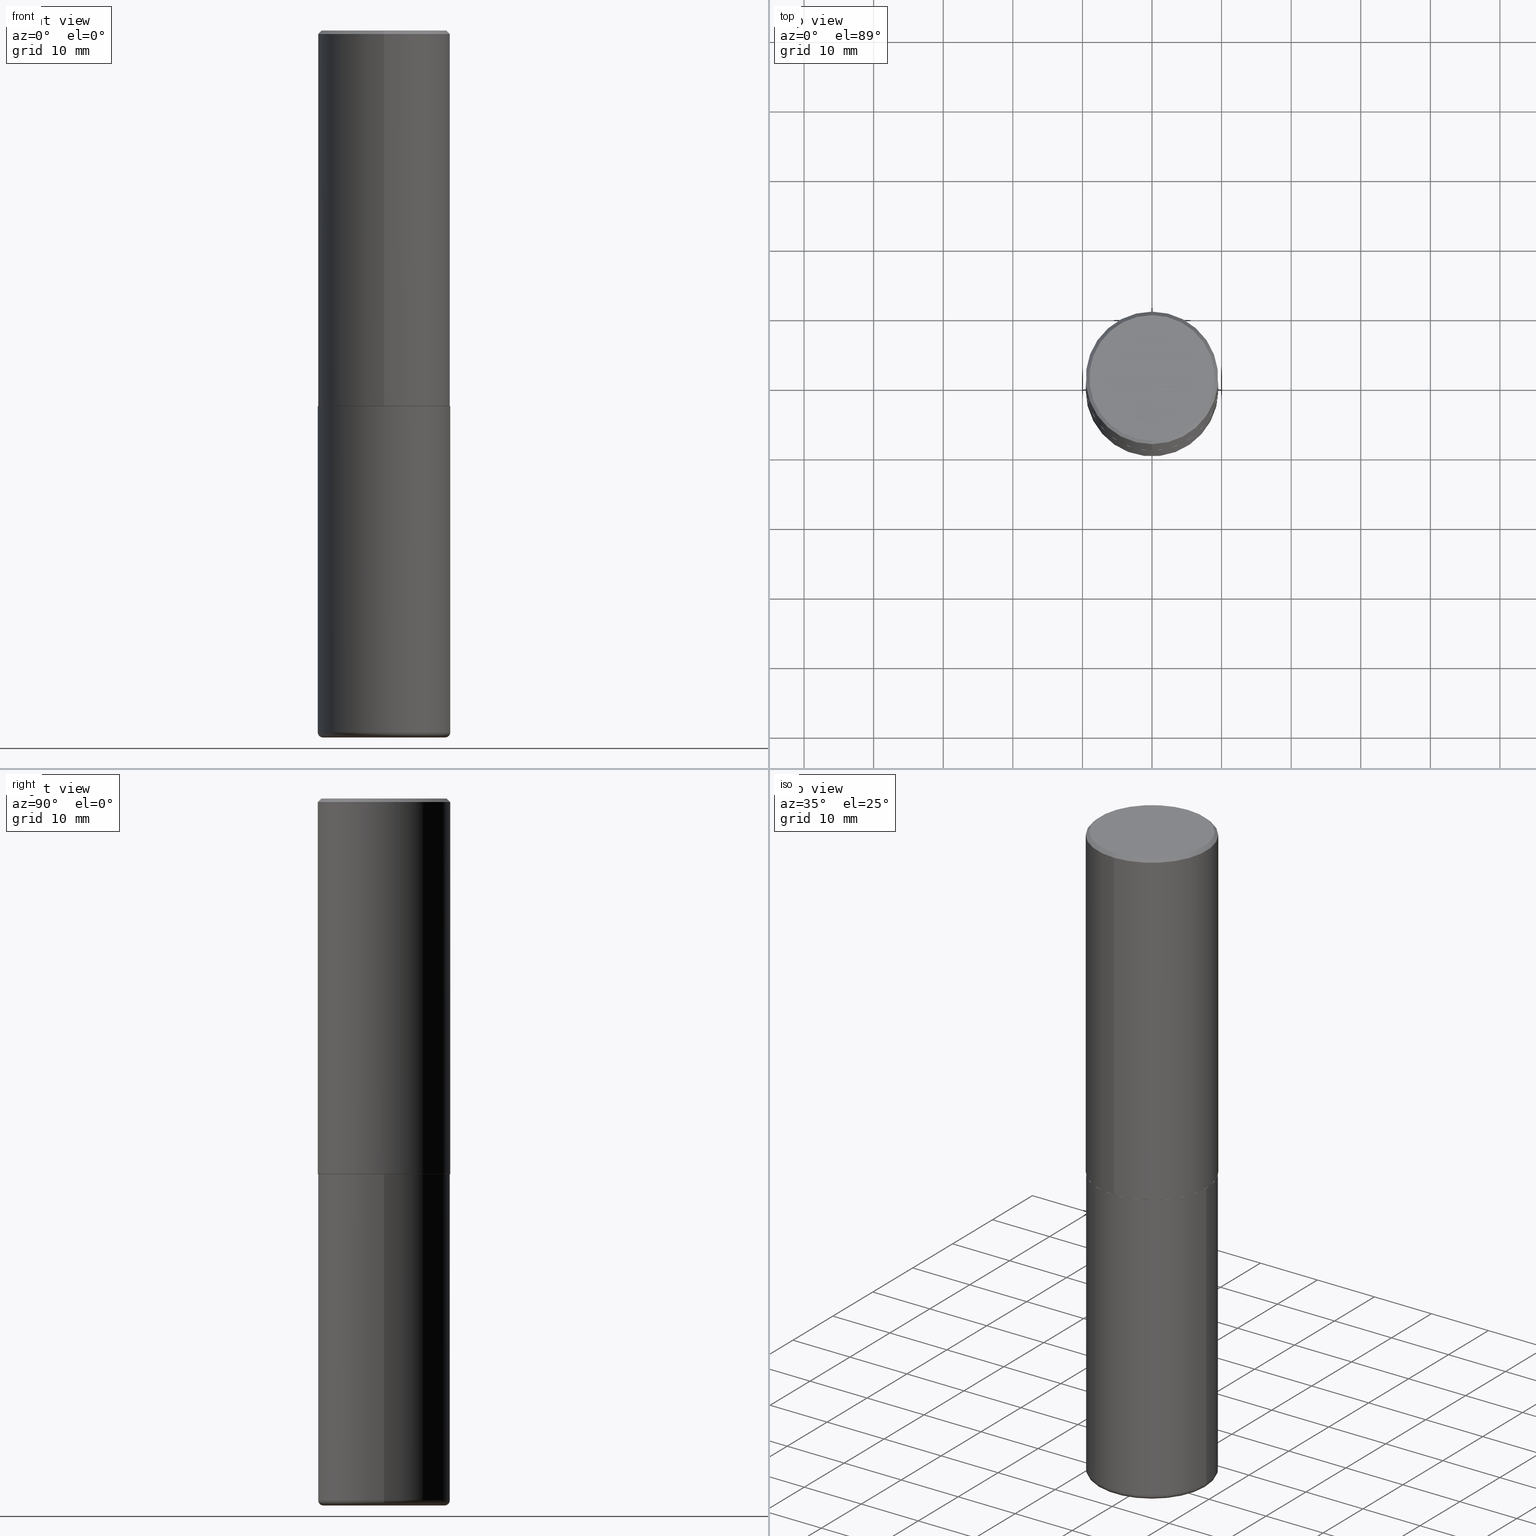
[diagram: canonical four-view strip — front | top / right | iso, engineering-drawing reading convention]
A machine part, canonical four-view strip (front | top / right | iso — engineering-drawing reading convention). The complete STEP part file that produces these views, byte-faithful:
ISO-10303-21;
HEADER;
FILE_DESCRIPTION (( 'STEP AP203' ),
    '1' );
FILE_NAME ('77419.STEP',
    '2024-05-02T19:38:42',
    ( '' ),
    ( '' ),
    'SwSTEP 2.0',
    'SolidWorks 2023',
    '' );
FILE_SCHEMA (( 'CONFIG_CONTROL_DESIGN' ));
ENDSEC;

DATA;
#1 = AXIS2_PLACEMENT_3D ( 'NONE', #12, #267, #354 ) ;
#2 = LOCAL_TIME ( 15, 38, 42.00000000000000000, #308 ) ;
#3 = CARTESIAN_POINT ( 'NONE',  ( 5.194774663215162724E-29, -7.422042209638035708E-15, -2.125000000000000000 ) ) ;
#4 = FACE_OUTER_BOUND ( 'NONE', #178, .T. ) ;
#5 = DIRECTION ( 'NONE',  ( 2.444599841513016780E-29, -3.492725745712018196E-15, -1.000000000000000000 ) ) ;
#6 = CYLINDRICAL_SURFACE ( 'NONE', #355, 0.3750000000000001665 ) ;
#7 = CARTESIAN_POINT ( 'NONE',  ( -0.3749999999999999445, -1.119664565610691011E-14, -3.970000000000000195 ) ) ;
#8 = AXIS2_PLACEMENT_3D ( 'NONE', #360, #63, #89 ) ;
#9 = DIRECTION ( 'NONE',  ( -2.445468806185136597E-29, 3.491481338843145583E-15, 1.000000000000000000 ) ) ;
#10 = DIRECTION ( 'NONE',  ( -6.982962677686266711E-15, -1.000000000000000000, 3.492725745712018196E-15 ) ) ;
#11 = VERTEX_POINT ( 'NONE', #117 ) ;
#12 = CARTESIAN_POINT ( 'NONE',  ( 9.781875224740546387E-29, -1.396592535537258233E-14, -4.000000000000000000 ) ) ;
#13 = AXIS2_PLACEMENT_3D ( 'NONE', #394, #194, #261 ) ;
#14 = APPROVAL_STATUS ( 'not_yet_approved' ) ;
#15 = PRODUCT_RELATED_PRODUCT_CATEGORY ( 'detail', '', ( #51 ) ) ;
#16 = ORIENTED_EDGE ( 'NONE', *, *, #388, .T. ) ;
#17 = PERSON_AND_ORGANIZATION ( #141, #54 ) ;
#18 = CIRCLE ( 'NONE', #131, 0.3750000000000000555 ) ;
#19 = ORIENTED_EDGE ( 'NONE', *, *, #345, .T. ) ;
#20 = ORIENTED_EDGE ( 'NONE', *, *, #111, .T. ) ;
#21 = ADVANCED_FACE ( 'NONE', ( #379 ), #82, .F. ) ;
#22 = ORIENTED_EDGE ( 'NONE', *, *, #30, .T. ) ;
#23 = DIRECTION ( 'NONE',  ( 1.000000000000000000, -6.982962677686279332E-15, 0.000000000000000000 ) ) ;
#24 = ORIENTED_EDGE ( 'NONE', *, *, #225, .F. ) ;
#25 = CC_DESIGN_DATE_AND_TIME_ASSIGNMENT ( #40, #75, ( #249 ) ) ;
#26 = CYLINDRICAL_SURFACE ( 'NONE', #418, 0.3750000000000000555 ) ;
#27 = DIRECTION ( 'NONE',  ( 2.444599841513017620E-29, -3.492725745712017802E-15, -1.000000000000000000 ) ) ;
#28 = AXIS2_PLACEMENT_3D ( 'NONE', #134, #90, #232 ) ;
#29 = DIRECTION ( 'NONE',  ( 1.000000000000000000, -6.982962677686263555E-15, 4.883557194083111219E-29 ) ) ;
#30 = EDGE_CURVE ( 'NONE', #415, #169, #124, .T. ) ;
#31 = MANIFOLD_SOLID_BREP ( 'Body-Move/Copy2[2]', #166 ) ;
#32 = DIRECTION ( 'NONE',  ( -6.982962677686266711E-15, -1.000000000000000000, 3.642463991552348591E-15 ) ) ;
#33 = DIRECTION ( 'NONE',  ( -2.444599841513017620E-29, 3.492725745712017802E-15, 1.000000000000000000 ) ) ;
#34 = AXIS2_PLACEMENT_3D ( 'NONE', #380, #316, #23 ) ;
#35 = CIRCLE ( 'NONE', #1, 0.3450000000000000289 ) ;
#36 = CARTESIAN_POINT ( 'NONE',  ( 3.954426510820204334E-45, -5.649892898348338006E-31, -1.617617101853660202E-16 ) ) ;
#37 = DIRECTION ( 'NONE',  ( -2.445468806185136597E-29, 3.491481338843145583E-15, 1.000000000000000000 ) ) ;
#38 = CC_DESIGN_PERSON_AND_ORGANIZATION_ASSIGNMENT ( #149, #175, ( #83 ) ) ;
#39 = ORIENTED_EDGE ( 'NONE', *, *, #183, .T. ) ;
#40 = DATE_AND_TIME ( #109, #2 ) ;
#41 = AXIS2_PLACEMENT_3D ( 'NONE', #113, #272, #344 ) ;
#42 = EDGE_CURVE ( 'NONE', #301, #399, #284, .T. ) ;
#43 = APPROVAL_DATE_TIME ( #334, #370 ) ;
#44 = ORIENTED_EDGE ( 'NONE', *, *, #266, .T. ) ;
#45 = APPROVAL_ROLE ( '' ) ;
#46 = CONICAL_SURFACE ( 'NONE', #352, 0.3750000000000000555, 0.7853981633974466137 ) ;
#47 = ORIENTED_EDGE ( 'NONE', *, *, #266, .F. ) ;
#48 = ADVANCED_FACE ( 'NONE', ( #84 ), #61, .T. ) ;
#49 = EDGE_LOOP ( 'NONE', ( #208, #44, #22, #361 ) ) ;
#50 = DIRECTION ( 'NONE',  ( 2.438088387897960049E-29, -3.491481338843145188E-15, -1.000000000000000000 ) ) ;
#51 = PRODUCT ( '77419', '77419', '', ( #207 ) ) ;
#52 = ORIENTED_EDGE ( 'NONE', *, *, #229, .T. ) ;
#53 = AXIS2_PLACEMENT_3D ( 'NONE', #278, #86, #76 ) ;
#54 = ORGANIZATION ( 'UNSPECIFIED', 'UNSPECIFIED', '' ) ;
#55 = DIRECTION ( 'NONE',  ( -2.444599841513017620E-29, 3.492725745712017802E-15, 1.000000000000000000 ) ) ;
#56 = DIRECTION ( 'NONE',  ( -2.445468806185136597E-29, 3.491481338843145583E-15, 1.000000000000000000 ) ) ;
#57 = ADVANCED_FACE ( 'NONE', ( #192 ), #26, .T. ) ;
#58 = DIRECTION ( 'NONE',  ( -2.445468806185136597E-29, 3.491481338843145583E-15, 1.000000000000000000 ) ) ;
#59 = CARTESIAN_POINT ( 'NONE',  ( 0.3750000000000000555, -1.003800884917403364E-14, -2.125000000000000000 ) ) ;
#60 = CARTESIAN_POINT ( 'NONE',  ( 0.000000000000000000, 0.000000000000000000, 0.000000000000000000 ) ) ;
#61 = CYLINDRICAL_SURFACE ( 'NONE', #138, 0.3750000000000000555 ) ;
#62 = DIRECTION ( 'NONE',  ( -2.444599841513017620E-29, 3.492725745712017802E-15, 1.000000000000000000 ) ) ;
#63 = DIRECTION ( 'NONE',  ( -2.444599841513017620E-29, 3.492725745712017802E-15, 1.000000000000000000 ) ) ;
#64 = COORDINATED_UNIVERSAL_TIME_OFFSET ( 5, 0, .BEHIND. ) ;
#65 = DIRECTION ( 'NONE',  ( -2.445468806185136597E-29, 3.491481338843145583E-15, 1.000000000000000000 ) ) ;
#66 = APPROVAL_DATE_TIME ( #95, #147 ) ;
#67 = ADVANCED_FACE ( 'NONE', ( #386 ), #180, .T. ) ;
#68 = COORDINATED_UNIVERSAL_TIME_OFFSET ( 5, 0, .BEHIND. ) ;
#69 = CALENDAR_DATE ( 2024, 2, 5 ) ;
#70 =( GEOMETRIC_REPRESENTATION_CONTEXT ( 3 ) GLOBAL_UNCERTAINTY_ASSIGNED_CONTEXT ( ( #296 ) ) GLOBAL_UNIT_ASSIGNED_CONTEXT ( ( #101, #210, #215 ) ) REPRESENTATION_CONTEXT ( 'NONE', 'WORKASPACE' ) );
#71 = VERTEX_POINT ( 'NONE', #228 ) ;
#72 = PERSON_AND_ORGANIZATION ( #141, #54 ) ;
#73 = DIRECTION ( 'NONE',  ( 6.982962677686265922E-15, 1.000000000000000000, -3.494488891895536035E-15 ) ) ;
#74 = ORIENTED_EDGE ( 'NONE', *, *, #303, .F. ) ;
#75 = DATE_TIME_ROLE ( 'classification_date' ) ;
#76 = DIRECTION ( 'NONE',  ( 1.000000000000000000, -6.982962677686266711E-15, 0.000000000000000000 ) ) ;
#77 = ORIENTED_EDGE ( 'NONE', *, *, #303, .T. ) ;
#78 = DIRECTION ( 'NONE',  ( -2.445468806185136597E-29, 3.491481338843145583E-15, 1.000000000000000000 ) ) ;
#79 = CARTESIAN_POINT ( 'NONE',  ( 4.889199683026055945E-31, -6.985451491424065481E-17, -0.02000000000000008715 ) ) ;
#80 = AXIS2_PLACEMENT_3D ( 'NONE', #273, #374, #158 ) ;
#81 = VERTEX_POINT ( 'NONE', #259 ) ;
#82 = PLANE ( 'NONE',  #222 ) ;
#83 = PRODUCT_DEFINITION ( 'UNKNOWN', '', #201, #331 ) ;
#84 = FACE_OUTER_BOUND ( 'NONE', #339, .T. ) ;
#85 = VECTOR ( 'NONE', #335, 39.37007874015748143 ) ;
#86 = DIRECTION ( 'NONE',  ( -2.445468806185136597E-29, 3.491481338843145583E-15, 1.000000000000000000 ) ) ;
#87 = DIRECTION ( 'NONE',  ( -2.445468806185136597E-29, 3.491481338843145583E-15, 1.000000000000000000 ) ) ;
#88 = DIRECTION ( 'NONE',  ( -2.444599841513017620E-29, 3.492725745712017802E-15, 1.000000000000000000 ) ) ;
#89 = DIRECTION ( 'NONE',  ( -6.982962677686266711E-15, -1.000000000000000000, 3.652203200085913145E-15 ) ) ;
#90 = DIRECTION ( 'NONE',  ( -2.444599841513017620E-29, 3.492725745712017802E-15, 1.000000000000000000 ) ) ;
#91 = AXIS2_PLACEMENT_3D ( 'NONE', #213, #78, #110 ) ;
#92 = DIRECTION ( 'NONE',  ( 4.937700262164538576E-15, 0.7071067811865437980, -0.7071067811865511255 ) ) ;
#93 = DIRECTION ( 'NONE',  ( -1.000000000000000000, 7.105427357601001859E-15, 0.000000000000000000 ) ) ;
#94 = CARTESIAN_POINT ( 'NONE',  ( 3.954426510820204334E-45, -5.649892898348338006E-31, -1.617617101853660202E-16 ) ) ;
#95 = DATE_AND_TIME ( #304, #348 ) ;
#96 = CIRCLE ( 'NONE', #13, 0.3739999999999999991 ) ;
#97 = DIRECTION ( 'NONE',  ( -2.444599841513017620E-29, 3.492725745712018196E-15, 1.000000000000000000 ) ) ;
#98 = ORIENTED_EDGE ( 'NONE', *, *, #298, .F. ) ;
#99 = APPLICATION_PROTOCOL_DEFINITION ( 'international standard', 'config_control_design', 1994, #369 ) ;
#100 = EDGE_CURVE ( 'NONE', #399, #280, #236, .T. ) ;
#101 =( CONVERSION_BASED_UNIT ( 'INCH', #401 ) LENGTH_UNIT ( ) NAMED_UNIT ( #118 ) );
#102 = ADVANCED_FACE ( 'NONE', ( #198 ), #417, .T. ) ;
#103 = COORDINATED_UNIVERSAL_TIME_OFFSET ( 5, 0, .BEHIND. ) ;
#104 = DIRECTION ( 'NONE',  ( -6.982962677686266711E-15, -1.000000000000000000, 3.652203200085913145E-15 ) ) ;
#105 = ORIENTED_EDGE ( 'NONE', *, *, #289, .T. ) ;
#106 = AXIS2_PLACEMENT_3D ( 'NONE', #327, #135, #32 ) ;
#107 = CARTESIAN_POINT ( 'NONE',  ( 5.194774663215161603E-29, -7.422042209638035708E-15, -2.124999999999999556 ) ) ;
#108 = ORIENTED_EDGE ( 'NONE', *, *, #246, .F. ) ;
#109 = CALENDAR_DATE ( 2024, 2, 5 ) ;
#110 = DIRECTION ( 'NONE',  ( 1.000000000000000000, -6.982962677686266711E-15, 0.000000000000000000 ) ) ;
#111 = EDGE_CURVE ( 'NONE', #415, #275, #403, .T. ) ;
#112 = EDGE_LOOP ( 'NONE', ( #105, #52 ) ) ;
#113 = CARTESIAN_POINT ( 'NONE',  ( 4.889199683026055945E-31, -6.985451491424065481E-17, -0.02000000000000008715 ) ) ;
#114 = DIRECTION ( 'NONE',  ( -6.982962677686265922E-15, -1.000000000000000000, 3.492725745712018196E-15 ) ) ;
#115 = ORIENTED_EDGE ( 'NONE', *, *, #42, .F. ) ;
#116 = CONICAL_SURFACE ( 'NONE', #8, 0.3739999999999999991, 0.7853981633976873100 ) ;
#117 = CARTESIAN_POINT ( 'NONE',  ( -2.504081769186609399E-15, -0.3550000000000001488, 1.078155929542400814E-15 ) ) ;
#118 = DIMENSIONAL_EXPONENTS ( 1.000000000000000000, 0.000000000000000000, 0.000000000000000000, 0.000000000000000000, 0.000000000000000000, 0.000000000000000000, 0.000000000000000000 ) ;
#119 = ADVANCED_FACE ( 'NONE', ( #4 ), #128, .T. ) ;
#120 = DIRECTION ( 'NONE',  ( 5.024295867789263036E-15, 0.7071067811867189912, 0.7071067811863760433 ) ) ;
#121 = APPLICATION_CONTEXT ( 'configuration controlled 3d designs of mechanical parts and assemblies' ) ;
#122 = ORIENTED_EDGE ( 'NONE', *, *, #377, .F. ) ;
#123 = FACE_OUTER_BOUND ( 'NONE', #211, .T. ) ;
#124 = CIRCLE ( 'NONE', #34, 0.02999999999999995379 ) ;
#125 = VECTOR ( 'NONE', #92, 39.37007874015748854 ) ;
#126 = CARTESIAN_POINT ( 'NONE',  ( 9.781875224740546387E-29, -1.396592535537258233E-14, -4.000000000000000000 ) ) ;
#127 = CARTESIAN_POINT ( 'NONE',  ( 4.889199683026055945E-31, -6.985451491424065481E-17, -0.02000000000000008715 ) ) ;
#128 = CYLINDRICAL_SURFACE ( 'NONE', #347, 0.3750000000000001665 ) ;
#129 = CARTESIAN_POINT ( 'NONE',  ( 2.660982545421628047E-15, 0.3739999999999925606, -2.125000000000000888 ) ) ;
#130 = LINE ( 'NONE', #164, #324 ) ;
#131 = AXIS2_PLACEMENT_3D ( 'NONE', #79, #55, #190 ) ;
#132 = LOCAL_TIME ( 15, 38, 42.00000000000000000, #64 ) ;
#133 = LINE ( 'NONE', #264, #288 ) ;
#134 = CARTESIAN_POINT ( 'NONE',  ( 5.192330063373648592E-29, -7.418549483892325607E-15, -2.123999999999999666 ) ) ;
#135 = DIRECTION ( 'NONE',  ( -2.444599841513017620E-29, 3.492725745712017802E-15, 1.000000000000000000 ) ) ;
#136 = DIRECTION ( 'NONE',  ( -6.982962677686266711E-15, -1.000000000000000000, 3.492725745712018196E-15 ) ) ;
#137 = DIRECTION ( 'NONE',  ( 6.982962677686265922E-15, 1.000000000000000000, -3.492725745712018196E-15 ) ) ;
#138 = AXIS2_PLACEMENT_3D ( 'NONE', #320, #58, #165 ) ;
#139 = VECTOR ( 'NONE', #238, 39.37007874015748143 ) ;
#140 = APPROVAL_PERSON_ORGANIZATION ( #319, #384, #154 ) ;
#141 = PERSON ( 'UNSPECIFIED', 'UNSPECIFIED', 'UNSPECIFIED', ('UNSPECIFIED'), ('UNSPECIFIED'), ('UNSPECIFIED') ) ;
#142 = ORIENTED_EDGE ( 'NONE', *, *, #205, .F. ) ;
#143 = DIRECTION ( 'NONE',  ( 0.000000000000000000, 0.000000000000000000, 1.000000000000000000 ) ) ;
#144 = FACE_OUTER_BOUND ( 'NONE', #250, .T. ) ;
#145 = LINE ( 'NONE', #312, #243 ) ;
#146 = AXIS2_PLACEMENT_3D ( 'NONE', #383, #87, #160 ) ;
#147 = APPROVAL ( #14, 'UNSPECIFIED' ) ;
#148 = EDGE_LOOP ( 'NONE', ( #315, #351 ) ) ;
#149 = PERSON_AND_ORGANIZATION ( #141, #54 ) ;
#150 = APPLICATION_PROTOCOL_DEFINITION ( 'international standard', 'config_control_design', 1994, #121 ) ;
#151 = ORIENTED_EDGE ( 'NONE', *, *, #336, .T. ) ;
#152 = ADVANCED_FACE ( 'NONE', ( #123 ), #46, .T. ) ;
#153 = VERTEX_POINT ( 'NONE', #323 ) ;
#154 = APPROVAL_ROLE ( '' ) ;
#155 = AXIS2_PLACEMENT_3D ( 'NONE', #269, #405, #104 ) ;
#156 = ORIENTED_EDGE ( 'NONE', *, *, #336, .F. ) ;
#157 = ORIENTED_EDGE ( 'NONE', *, *, #270, .F. ) ;
#158 = DIRECTION ( 'NONE',  ( 1.000000000000000000, -6.982962677686266711E-15, 0.000000000000000000 ) ) ;
#159 = CC_DESIGN_PERSON_AND_ORGANIZATION_ASSIGNMENT ( #72, #400, ( #201 ) ) ;
#160 = DIRECTION ( 'NONE',  ( 1.000000000000000000, -6.982962677686267499E-15, 0.000000000000000000 ) ) ;
#161 = FACE_OUTER_BOUND ( 'NONE', #112, .T. ) ;
#162 = CARTESIAN_POINT ( 'NONE',  ( 2.478951750578625787E-15, 0.3550000000000001488, -1.320798494820450091E-15 ) ) ;
#163 = CC_DESIGN_PERSON_AND_ORGANIZATION_ASSIGNMENT ( #17, #203, ( #249 ) ) ;
#164 = CARTESIAN_POINT ( 'NONE',  ( 2.664535259100376486E-15, 0.3750000000000001665, -1.309772154642007415E-15 ) ) ;
#165 = DIRECTION ( 'NONE',  ( 1.000000000000000000, -6.982962677686265922E-15, 4.876176775795935793E-29 ) ) ;
#166 = CLOSED_SHELL ( 'NONE', ( #396, #363, #378, #152, #119, #358, #196, #260 ) ) ;
#167 = AXIS2_PLACEMENT_3D ( 'NONE', #126, #255, #322 ) ;
#168 = DIRECTION ( 'NONE',  ( -2.444599841513017620E-29, 3.492725745712017802E-15, 1.000000000000000000 ) ) ;
#169 = VERTEX_POINT ( 'NONE', #408 ) ;
#170 = CARTESIAN_POINT ( 'NONE',  ( 2.618611004132350411E-15, 0.3749999999999999445, -0.02000000000000139513 ) ) ;
#171 = MANIFOLD_SOLID_BREP ( 'Body-Move/Copy2[1]', #309 ) ;
#172 = ORIENTED_EDGE ( 'NONE', *, *, #100, .T. ) ;
#173 = PERSON_AND_ORGANIZATION ( #141, #54 ) ;
#174 = CALENDAR_DATE ( 2024, 2, 5 ) ;
#175 = PERSON_AND_ORGANIZATION_ROLE ( 'creator' ) ;
#176 = ORIENTED_EDGE ( 'NONE', *, *, #377, .T. ) ;
#177 = PERSON_AND_ORGANIZATION ( #141, #54 ) ;
#178 = EDGE_LOOP ( 'NONE', ( #108, #172, #409, #346 ) ) ;
#179 = APPROVAL_ROLE ( '' ) ;
#180 = TOROIDAL_SURFACE ( 'NONE', #353, 0.3450000000000000289, 0.02999999999999998848 ) ;
#181 = CIRCLE ( 'NONE', #80, 0.3750000000000000555 ) ;
#182 = ORIENTED_EDGE ( 'NONE', *, *, #229, .F. ) ;
#183 = EDGE_CURVE ( 'NONE', #169, #279, #181, .T. ) ;
#184 = ORIENTED_EDGE ( 'NONE', *, *, #30, .F. ) ;
#185 = CC_DESIGN_PERSON_AND_ORGANIZATION_ASSIGNMENT ( #173, #305, ( #201 ) ) ;
#186 = DIRECTION ( 'NONE',  ( -1.000000000000000000, 6.982962677686265922E-15, -4.876176775795935793E-29 ) ) ;
#187 = AXIS2_PLACEMENT_3D ( 'NONE', #107, #256, #385 ) ;
#188 = EDGE_LOOP ( 'NONE', ( #20, #19, #247, #184 ) ) ;
#189 = EDGE_CURVE ( 'NONE', #279, #169, #268, .T. ) ;
#190 = DIRECTION ( 'NONE',  ( -6.982962677686265922E-15, -1.000000000000000000, 3.494488891895536035E-15 ) ) ;
#191 = CIRCLE ( 'NONE', #106, 0.3750000000000002776 ) ;
#192 = FACE_OUTER_BOUND ( 'NONE', #217, .T. ) ;
#193 = CC_DESIGN_APPROVAL ( #370, ( #201 ) ) ;
#194 = DIRECTION ( 'NONE',  ( -2.444599841513017620E-29, 3.492725745712017802E-15, 1.000000000000000000 ) ) ;
#195 = EDGE_CURVE ( 'NONE', #251, #71, #376, .T. ) ;
#196 = ADVANCED_FACE ( 'NONE', ( #226 ), #372, .F. ) ;
#197 = CARTESIAN_POINT ( 'NONE',  ( -0.3750000000000000555, 2.664535259100376091E-15, -1.844600658845589598E-29 ) ) ;
#198 = FACE_OUTER_BOUND ( 'NONE', #220, .T. ) ;
#199 = DIRECTION ( 'NONE',  ( -6.982962677686266711E-15, -1.000000000000000000, 3.492725745712018196E-15 ) ) ;
#200 = AXIS2_PLACEMENT_3D ( 'NONE', #127, #406, #244 ) ;
#201 = PRODUCT_DEFINITION_FORMATION_WITH_SPECIFIED_SOURCE ( 'ANY', '', #51, .NOT_KNOWN. ) ;
#202 = FACE_OUTER_BOUND ( 'NONE', #341, .T. ) ;
#203 = PERSON_AND_ORGANIZATION_ROLE ( 'classification_officer' ) ;
#204 = FACE_OUTER_BOUND ( 'NONE', #49, .T. ) ;
#205 = EDGE_CURVE ( 'NONE', #71, #251, #18, .T. ) ;
#206 = SHAPE_DEFINITION_REPRESENTATION ( #414, #235 ) ;
#207 = MECHANICAL_CONTEXT ( 'NONE', #121, 'mechanical' ) ;
#208 = ORIENTED_EDGE ( 'NONE', *, *, #345, .F. ) ;
#209 = DIRECTION ( 'NONE',  ( 1.000000000000000000, 0.000000000000000000, 0.000000000000000000 ) ) ;
#210 =( NAMED_UNIT ( * ) PLANE_ANGLE_UNIT ( ) SI_UNIT ( $, .RADIAN. ) );
#211 = EDGE_LOOP ( 'NONE', ( #286, #299, #330, #404 ) ) ;
#212 = DATE_TIME_ROLE ( 'creation_date' ) ;
#213 = CARTESIAN_POINT ( 'NONE',  ( 5.196621213143415268E-29, -7.419397845041683624E-15, -2.125000000000000000 ) ) ;
#214 = ORIENTED_EDGE ( 'NONE', *, *, #285, .F. ) ;
#215 =( NAMED_UNIT ( * ) SI_UNIT ( $, .STERADIAN. ) SOLID_ANGLE_UNIT ( ) );
#216 = DIRECTION ( 'NONE',  ( -2.444599841513016780E-29, 3.492725745712018196E-15, 1.000000000000000000 ) ) ;
#217 = EDGE_LOOP ( 'NONE', ( #39, #151, #333, #122 ) ) ;
#218 = AXIS2_PLACEMENT_3D ( 'NONE', #291, #387, #93 ) ;
#219 = ORIENTED_EDGE ( 'NONE', *, *, #321, .F. ) ;
#220 = EDGE_LOOP ( 'NONE', ( #307, #47 ) ) ;
#221 = ORIENTED_EDGE ( 'NONE', *, *, #225, .T. ) ;
#222 = AXIS2_PLACEMENT_3D ( 'NONE', #350, #50, #186 ) ;
#223 = CIRCLE ( 'NONE', #276, 0.3750000000000000555 ) ;
#224 = CIRCLE ( 'NONE', #187, 0.3739999999999999991 ) ;
#225 = EDGE_CURVE ( 'NONE', #81, #301, #224, .T. ) ;
#226 = FACE_OUTER_BOUND ( 'NONE', #375, .T. ) ;
#227 = CARTESIAN_POINT ( 'NONE',  ( 0.000000000000000000, 0.000000000000000000, 0.000000000000000000 ) ) ;
#228 = CARTESIAN_POINT ( 'NONE',  ( -2.572686749164323547E-15, -0.3750000000000001110, -0.01999999999999877570 ) ) ;
#229 = EDGE_CURVE ( 'NONE', #11, #252, #248, .T. ) ;
#230 = CARTESIAN_POINT ( 'NONE',  ( 5.196621213143415268E-29, -7.419397845041683624E-15, -2.125000000000000000 ) ) ;
#231 = CIRCLE ( 'NONE', #218, 0.02999999999999995379 ) ;
#232 = DIRECTION ( 'NONE',  ( -6.982962677686266711E-15, -1.000000000000000000, 3.642463991552348591E-15 ) ) ;
#233 = DIRECTION ( 'NONE',  ( -6.982962677686266711E-15, -1.000000000000000000, 3.492725745712018196E-15 ) ) ;
#234 = CARTESIAN_POINT ( 'NONE',  ( 2.618611004132350411E-15, 0.3749999999999999445, -0.02000000000000139513 ) ) ;
#235 = ADVANCED_BREP_SHAPE_REPRESENTATION ( '77419', ( #171, #31, #311 ), #70 ) ;
#236 = CIRCLE ( 'NONE', #28, 0.3750000000000002776 ) ;
#237 = TOROIDAL_SURFACE ( 'NONE', #262, 0.3450000000000000289, 0.02999999999999998848 ) ;
#238 = DIRECTION ( 'NONE',  ( -4.937700262165728178E-15, -0.7071067811867141062, 0.7071067811863809283 ) ) ;
#239 = ORIENTED_EDGE ( 'NONE', *, *, #189, .T. ) ;
#240 = APPROVAL_STATUS ( 'not_yet_approved' ) ;
#241 = FACE_OUTER_BOUND ( 'NONE', #342, .T. ) ;
#242 = DATE_AND_TIME ( #365, #263 ) ;
#243 = VECTOR ( 'NONE', #398, 39.37007874015748854 ) ;
#244 = DIRECTION ( 'NONE',  ( -6.982962677686265922E-15, -1.000000000000000000, 3.494488891895536035E-15 ) ) ;
#245 = ORIENTED_EDGE ( 'NONE', *, *, #321, .T. ) ;
#246 = EDGE_CURVE ( 'NONE', #399, #251, #130, .T. ) ;
#247 = ORIENTED_EDGE ( 'NONE', *, *, #183, .F. ) ;
#248 = CIRCLE ( 'NONE', #402, 0.3550000000000001488 ) ;
#249 = SECURITY_CLASSIFICATION ( '', '', #337 ) ;
#250 = EDGE_LOOP ( 'NONE', ( #182, #16, #373, #214 ) ) ;
#251 = VERTEX_POINT ( 'NONE', #234 ) ;
#252 = VERTEX_POINT ( 'NONE', #332 ) ;
#253 = CONICAL_SURFACE ( 'NONE', #155, 0.3739999999999999991, 0.7853981633976873100 ) ;
#254 = APPROVAL_PERSON_ORGANIZATION ( #340, #147, #45 ) ;
#255 = DIRECTION ( 'NONE',  ( 2.438088387897960049E-29, -3.491481338843145188E-15, -1.000000000000000000 ) ) ;
#256 = DIRECTION ( 'NONE',  ( -2.444599841513017620E-29, 3.492725745712017802E-15, 1.000000000000000000 ) ) ;
#257 = CARTESIAN_POINT ( 'NONE',  ( 0.000000000000000000, 0.000000000000000000, 0.000000000000000000 ) ) ;
#258 = LINE ( 'NONE', #290, #139 ) ;
#259 = CARTESIAN_POINT ( 'NONE',  ( -2.611628041454611937E-15, -0.3740000000000074931, -2.124999999999998224 ) ) ;
#260 = ADVANCED_FACE ( 'NONE', ( #161 ), #389, .F. ) ;
#261 = DIRECTION ( 'NONE',  ( -6.982962677686266711E-15, -1.000000000000000000, 3.652203200085913145E-15 ) ) ;
#262 = AXIS2_PLACEMENT_3D ( 'NONE', #393, #37, #29 ) ;
#263 = LOCAL_TIME ( 15, 38, 42.00000000000000000, #103 ) ;
#264 = CARTESIAN_POINT ( 'NONE',  ( -2.618611004132351200E-15, -0.3750000000000001665, 1.309772154642007415E-15 ) ) ;
#265 = FACE_OUTER_BOUND ( 'NONE', #407, .T. ) ;
#266 = EDGE_CURVE ( 'NONE', #275, #415, #35, .T. ) ;
#267 = DIRECTION ( 'NONE',  ( -2.445468806185136597E-29, 3.491481338843145583E-15, 1.000000000000000000 ) ) ;
#268 = CIRCLE ( 'NONE', #53, 0.3750000000000000555 ) ;
#269 = CARTESIAN_POINT ( 'NONE',  ( 5.194774663215161603E-29, -7.422042209638035708E-15, -2.124999999999999556 ) ) ;
#270 = EDGE_CURVE ( 'NONE', #280, #71, #133, .T. ) ;
#271 = APPROVAL_DATE_TIME ( #412, #384 ) ;
#272 = DIRECTION ( 'NONE',  ( 2.444599841513017620E-29, -3.492725745712017802E-15, -1.000000000000000000 ) ) ;
#273 = CARTESIAN_POINT ( 'NONE',  ( 9.708511160554992872E-29, -1.386118091520728738E-14, -3.970000000000000195 ) ) ;
#274 = VECTOR ( 'NONE', #120, 39.37007874015748143 ) ;
#275 = VERTEX_POINT ( 'NONE', #329 ) ;
#276 = AXIS2_PLACEMENT_3D ( 'NONE', #230, #65, #392 ) ;
#277 = CC_DESIGN_APPROVAL ( #384, ( #249 ) ) ;
#278 = CARTESIAN_POINT ( 'NONE',  ( 9.708511160554992872E-29, -1.386118091520728738E-14, -3.970000000000000195 ) ) ;
#279 = VERTEX_POINT ( 'NONE', #7 ) ;
#280 = VERTEX_POINT ( 'NONE', #297 ) ;
#281 = ORIENTED_EDGE ( 'NONE', *, *, #42, .T. ) ;
#282 = CIRCLE ( 'NONE', #91, 0.3750000000000000555 ) ;
#283 = CC_DESIGN_APPROVAL ( #147, ( #83 ) ) ;
#284 = LINE ( 'NONE', #413, #274 ) ;
#285 = EDGE_CURVE ( 'NONE', #252, #251, #364, .T. ) ;
#286 = ORIENTED_EDGE ( 'NONE', *, *, #388, .F. ) ;
#287 = DIRECTION ( 'NONE',  ( 1.000000000000000000, -6.982962677686263555E-15, 4.883557194083111219E-29 ) ) ;
#288 = VECTOR ( 'NONE', #293, 39.37007874015748143 ) ;
#289 = EDGE_CURVE ( 'NONE', #252, #11, #390, .T. ) ;
#290 = CARTESIAN_POINT ( 'NONE',  ( -2.611628041454611937E-15, -0.3740000000000074931, -2.124999999999998224 ) ) ;
#291 = CARTESIAN_POINT ( 'NONE',  ( -0.3450000000000000289, -1.140980847683494193E-14, -3.970000000000000195 ) ) ;
#292 = CARTESIAN_POINT ( 'NONE',  ( 9.708511160554992872E-29, -1.386118091520728738E-14, -3.970000000000000195 ) ) ;
#293 = DIRECTION ( 'NONE',  ( -2.444599841513017620E-29, 3.492725745712018196E-15, 1.000000000000000000 ) ) ;
#294 = AXIS2_PLACEMENT_3D ( 'NONE', #36, #168, #10 ) ;
#295 = CC_DESIGN_SECURITY_CLASSIFICATION ( #249, ( #201 ) ) ;
#296 = UNCERTAINTY_MEASURE_WITH_UNIT (LENGTH_MEASURE( 1.000000000000000082E-05 ), #101, 'distance_accuracy_value', 'NONE');
#297 = CARTESIAN_POINT ( 'NONE',  ( -2.618611004132299924E-15, -0.3750000000000077716, -2.123999999999998334 ) ) ;
#298 = EDGE_CURVE ( 'NONE', #81, #280, #258, .T. ) ;
#299 = ORIENTED_EDGE ( 'NONE', *, *, #289, .F. ) ;
#300 = CARTESIAN_POINT ( 'NONE',  ( 0.3750000000000000555, -2.618611004132350016E-15, 1.828566290923476203E-29 ) ) ;
#301 = VERTEX_POINT ( 'NONE', #129 ) ;
#302 = PERSON_AND_ORGANIZATION_ROLE ( 'design_owner' ) ;
#303 = EDGE_CURVE ( 'NONE', #280, #399, #191, .T. ) ;
#304 = CALENDAR_DATE ( 2024, 2, 5 ) ;
#305 = PERSON_AND_ORGANIZATION_ROLE ( 'creator' ) ;
#306 = CARTESIAN_POINT ( 'NONE',  ( 2.664535259100402913E-15, 0.3749999999999928391, -2.124000000000000998 ) ) ;
#307 = ORIENTED_EDGE ( 'NONE', *, *, #111, .F. ) ;
#308 = COORDINATED_UNIVERSAL_TIME_OFFSET ( 5, 0, .BEHIND. ) ;
#309 = CLOSED_SHELL ( 'NONE', ( #57, #67, #21, #48, #338, #102 ) ) ;
#310 = ORIENTED_EDGE ( 'NONE', *, *, #246, .T. ) ;
#311 = AXIS2_PLACEMENT_3D ( 'NONE', #397, #143, #209 ) ;
#312 = CARTESIAN_POINT ( 'NONE',  ( -2.572686749164323547E-15, -0.3750000000000001110, -0.01999999999999877570 ) ) ;
#313 = ORIENTED_EDGE ( 'NONE', *, *, #298, .T. ) ;
#314 = APPROVAL_STATUS ( 'not_yet_approved' ) ;
#315 = ORIENTED_EDGE ( 'NONE', *, *, #325, .T. ) ;
#316 = DIRECTION ( 'NONE',  ( -6.982962677686266711E-15, -1.000000000000000000, 3.491481338843145583E-15 ) ) ;
#317 = AXIS2_PLACEMENT_3D ( 'NONE', #162, #5, #137 ) ;
#318 = VERTEX_POINT ( 'NONE', #59 ) ;
#319 = PERSON_AND_ORGANIZATION ( #141, #54 ) ;
#320 = CARTESIAN_POINT ( 'NONE',  ( 0.000000000000000000, 0.000000000000000000, 0.000000000000000000 ) ) ;
#321 = EDGE_CURVE ( 'NONE', #301, #81, #96, .T. ) ;
#322 = DIRECTION ( 'NONE',  ( -1.000000000000000000, 6.982962677686265922E-15, -4.876176775795935793E-29 ) ) ;
#323 = CARTESIAN_POINT ( 'NONE',  ( -0.3750000000000000555, -7.975754121024110595E-15, -2.125000000000000000 ) ) ;
#324 = VECTOR ( 'NONE', #97, 39.37007874015748143 ) ;
#325 = EDGE_CURVE ( 'NONE', #318, #153, #223, .T. ) ;
#326 = DIRECTION ( 'NONE',  ( 1.000000000000000000, -6.982962677686265922E-15, 4.876176775795935793E-29 ) ) ;
#327 = CARTESIAN_POINT ( 'NONE',  ( 5.192330063373648592E-29, -7.418549483892325607E-15, -2.123999999999999666 ) ) ;
#328 = DIRECTION ( 'NONE',  ( -2.445468806185136877E-29, 3.491481338843145188E-15, 1.000000000000000000 ) ) ;
#329 = CARTESIAN_POINT ( 'NONE',  ( -0.3450000000000000289, -1.135559928655357428E-14, -4.000000000000000000 ) ) ;
#330 = ORIENTED_EDGE ( 'NONE', *, *, #285, .T. ) ;
#331 = DESIGN_CONTEXT ( 'detailed design', #369, 'design' ) ;
#332 = CARTESIAN_POINT ( 'NONE',  ( 2.548781377355488296E-15, 0.3550000000000001488, -1.401679349913132854E-15 ) ) ;
#333 = ORIENTED_EDGE ( 'NONE', *, *, #325, .F. ) ;
#334 = DATE_AND_TIME ( #69, #132 ) ;
#335 = DIRECTION ( 'NONE',  ( -2.445468806185136877E-29, 3.491481338843145188E-15, 1.000000000000000000 ) ) ;
#336 = EDGE_CURVE ( 'NONE', #279, #153, #357, .T. ) ;
#337 = SECURITY_CLASSIFICATION_LEVEL ( 'unclassified' ) ;
#338 = ADVANCED_FACE ( 'NONE', ( #204 ), #237, .T. ) ;
#339 = EDGE_LOOP ( 'NONE', ( #156, #239, #176, #410 ) ) ;
#340 = PERSON_AND_ORGANIZATION ( #141, #54 ) ;
#341 = EDGE_LOOP ( 'NONE', ( #77, #310, #142, #157 ) ) ;
#342 = EDGE_LOOP ( 'NONE', ( #221, #281, #74, #98 ) ) ;
#343 = PERSON_AND_ORGANIZATION ( #141, #54 ) ;
#344 = DIRECTION ( 'NONE',  ( 6.982962677686265922E-15, 1.000000000000000000, -3.494488891895536035E-15 ) ) ;
#345 = EDGE_CURVE ( 'NONE', #275, #279, #231, .T. ) ;
#346 = ORIENTED_EDGE ( 'NONE', *, *, #195, .F. ) ;
#347 = AXIS2_PLACEMENT_3D ( 'NONE', #257, #88, #136 ) ;
#348 = LOCAL_TIME ( 15, 38, 42.00000000000000000, #362 ) ;
#349 = ORIENTED_EDGE ( 'NONE', *, *, #100, .F. ) ;
#350 = CARTESIAN_POINT ( 'NONE',  ( 5.196621213143415268E-29, -7.419397845041683624E-15, -2.125000000000000000 ) ) ;
#351 = ORIENTED_EDGE ( 'NONE', *, *, #391, .T. ) ;
#352 = AXIS2_PLACEMENT_3D ( 'NONE', #382, #27, #73 ) ;
#353 = AXIS2_PLACEMENT_3D ( 'NONE', #292, #56, #287 ) ;
#354 = DIRECTION ( 'NONE',  ( 1.000000000000000000, -6.982962677686267499E-15, 0.000000000000000000 ) ) ;
#355 = AXIS2_PLACEMENT_3D ( 'NONE', #60, #33, #233 ) ;
#356 = APPROVAL_PERSON_ORGANIZATION ( #177, #370, #179 ) ;
#357 = LINE ( 'NONE', #197, #395 ) ;
#358 = ADVANCED_FACE ( 'NONE', ( #265 ), #116, .T. ) ;
#359 = LINE ( 'NONE', #300, #85 ) ;
#360 = CARTESIAN_POINT ( 'NONE',  ( 5.194774663215161603E-29, -7.422042209638035708E-15, -2.124999999999999556 ) ) ;
#361 = ORIENTED_EDGE ( 'NONE', *, *, #189, .F. ) ;
#362 = COORDINATED_UNIVERSAL_TIME_OFFSET ( 5, 0, .BEHIND. ) ;
#363 = ADVANCED_FACE ( 'NONE', ( #202 ), #6, .T. ) ;
#364 = LINE ( 'NONE', #170, #125 ) ;
#365 = CALENDAR_DATE ( 2024, 2, 5 ) ;
#366 = CC_DESIGN_PERSON_AND_ORGANIZATION_ASSIGNMENT ( #343, #302, ( #51 ) ) ;
#367 = CARTESIAN_POINT ( 'NONE',  ( 0.3450000000000000289, -1.637504747917434403E-14, -4.000000000000000000 ) ) ;
#368 = AXIS2_PLACEMENT_3D ( 'NONE', #3, #216, #114 ) ;
#369 = APPLICATION_CONTEXT ( 'configuration controlled 3d designs of mechanical parts and assemblies' ) ;
#370 = APPROVAL ( #240, 'UNSPECIFIED' ) ;
#371 =( LENGTH_UNIT ( ) NAMED_UNIT ( * ) SI_UNIT ( $, .METRE. ) );
#372 = PLANE ( 'NONE',  #368 ) ;
#373 = ORIENTED_EDGE ( 'NONE', *, *, #205, .T. ) ;
#374 = DIRECTION ( 'NONE',  ( -2.445468806185136597E-29, 3.491481338843145583E-15, 1.000000000000000000 ) ) ;
#375 = EDGE_LOOP ( 'NONE', ( #24, #219 ) ) ;
#376 = CIRCLE ( 'NONE', #200, 0.3750000000000000555 ) ;
#377 = EDGE_CURVE ( 'NONE', #169, #318, #359, .T. ) ;
#378 = ADVANCED_FACE ( 'NONE', ( #144 ), #411, .T. ) ;
#379 = FACE_OUTER_BOUND ( 'NONE', #148, .T. ) ;
#380 = CARTESIAN_POINT ( 'NONE',  ( 0.3450000000000000289, -1.627030303900905066E-14, -3.970000000000000195 ) ) ;
#381 = LOCAL_TIME ( 15, 38, 42.00000000000000000, #68 ) ;
#382 = CARTESIAN_POINT ( 'NONE',  ( 4.889199683026055945E-31, -6.985451491424065481E-17, -0.02000000000000008715 ) ) ;
#383 = CARTESIAN_POINT ( 'NONE',  ( 9.781875224740546387E-29, -1.396592535537258233E-14, -4.000000000000000000 ) ) ;
#384 = APPROVAL ( #314, 'UNSPECIFIED' ) ;
#385 = DIRECTION ( 'NONE',  ( -6.982962677686266711E-15, -1.000000000000000000, 3.652203200085913145E-15 ) ) ;
#386 = FACE_OUTER_BOUND ( 'NONE', #188, .T. ) ;
#387 = DIRECTION ( 'NONE',  ( 7.105427357601001859E-15, 1.000000000000000000, -3.491481338843145583E-15 ) ) ;
#388 = EDGE_CURVE ( 'NONE', #11, #71, #145, .T. ) ;
#389 = PLANE ( 'NONE',  #317 ) ;
#390 = CIRCLE ( 'NONE', #294, 0.3550000000000001488 ) ;
#391 = EDGE_CURVE ( 'NONE', #153, #318, #282, .T. ) ;
#392 = DIRECTION ( 'NONE',  ( 1.000000000000000000, -6.982962677686266711E-15, 0.000000000000000000 ) ) ;
#393 = CARTESIAN_POINT ( 'NONE',  ( 9.708511160554992872E-29, -1.386118091520728738E-14, -3.970000000000000195 ) ) ;
#394 = CARTESIAN_POINT ( 'NONE',  ( 5.194774663215161603E-29, -7.422042209638035708E-15, -2.124999999999999556 ) ) ;
#395 = VECTOR ( 'NONE', #328, 39.37007874015748143 ) ;
#396 = ADVANCED_FACE ( 'NONE', ( #241 ), #253, .T. ) ;
#397 = CARTESIAN_POINT ( 'NONE',  ( 0.000000000000000000, 0.000000000000000000, 0.000000000000000000 ) ) ;
#398 = DIRECTION ( 'NONE',  ( -4.851104656540954809E-15, -0.7071067811865486830, -0.7071067811865462405 ) ) ;
#399 = VERTEX_POINT ( 'NONE', #306 ) ;
#400 = PERSON_AND_ORGANIZATION_ROLE ( 'design_supplier' ) ;
#401 = LENGTH_MEASURE_WITH_UNIT ( LENGTH_MEASURE( 0.02539999999999999897 ), #371 );
#402 = AXIS2_PLACEMENT_3D ( 'NONE', #94, #62, #199 ) ;
#403 = CIRCLE ( 'NONE', #146, 0.3450000000000000289 ) ;
#404 = ORIENTED_EDGE ( 'NONE', *, *, #195, .T. ) ;
#405 = DIRECTION ( 'NONE',  ( -2.444599841513017620E-29, 3.492725745712017802E-15, 1.000000000000000000 ) ) ;
#406 = DIRECTION ( 'NONE',  ( -2.444599841513017620E-29, 3.492725745712017802E-15, 1.000000000000000000 ) ) ;
#407 = EDGE_LOOP ( 'NONE', ( #115, #245, #313, #349 ) ) ;
#408 = CARTESIAN_POINT ( 'NONE',  ( 0.3749999999999999445, -1.647979191933963740E-14, -3.970000000000000195 ) ) ;
#409 = ORIENTED_EDGE ( 'NONE', *, *, #270, .T. ) ;
#410 = ORIENTED_EDGE ( 'NONE', *, *, #391, .F. ) ;
#411 = CONICAL_SURFACE ( 'NONE', #41, 0.3750000000000000555, 0.7853981633974466137 ) ;
#412 = DATE_AND_TIME ( #174, #381 ) ;
#413 = CARTESIAN_POINT ( 'NONE',  ( 2.657429831742826359E-15, 0.3739999999999925606, -2.125000000000000888 ) ) ;
#414 = PRODUCT_DEFINITION_SHAPE ( 'NONE', 'NONE',  #83 ) ;
#415 = VERTEX_POINT ( 'NONE', #367 ) ;
#416 = CC_DESIGN_DATE_AND_TIME_ASSIGNMENT ( #242, #212, ( #83 ) ) ;
#417 = PLANE ( 'NONE',  #167 ) ;
#418 = AXIS2_PLACEMENT_3D ( 'NONE', #227, #9, #326 ) ;
ENDSEC;
END-ISO-10303-21;
